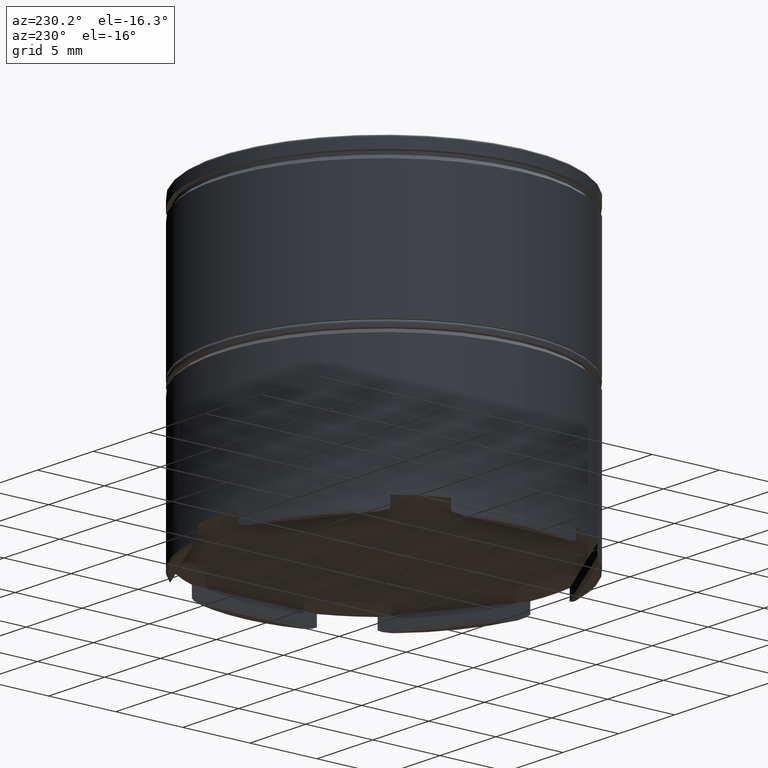
[diagram: clean part render]
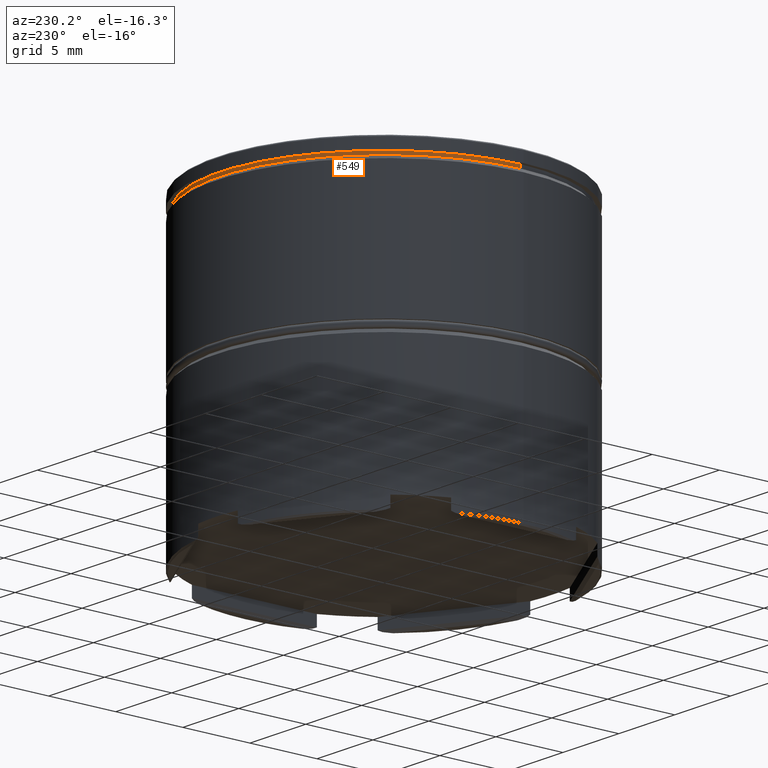
[diagram: same view with one face highlighted and labeled with its STEP entity id]
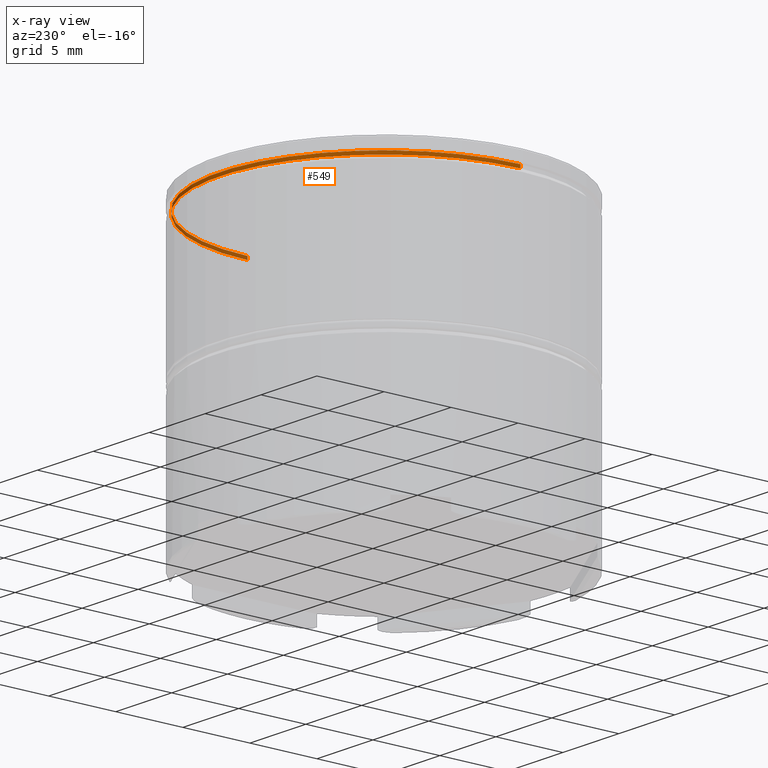
[diagram: x-ray of the same camera — body ghosted, the highlighted face saturated]
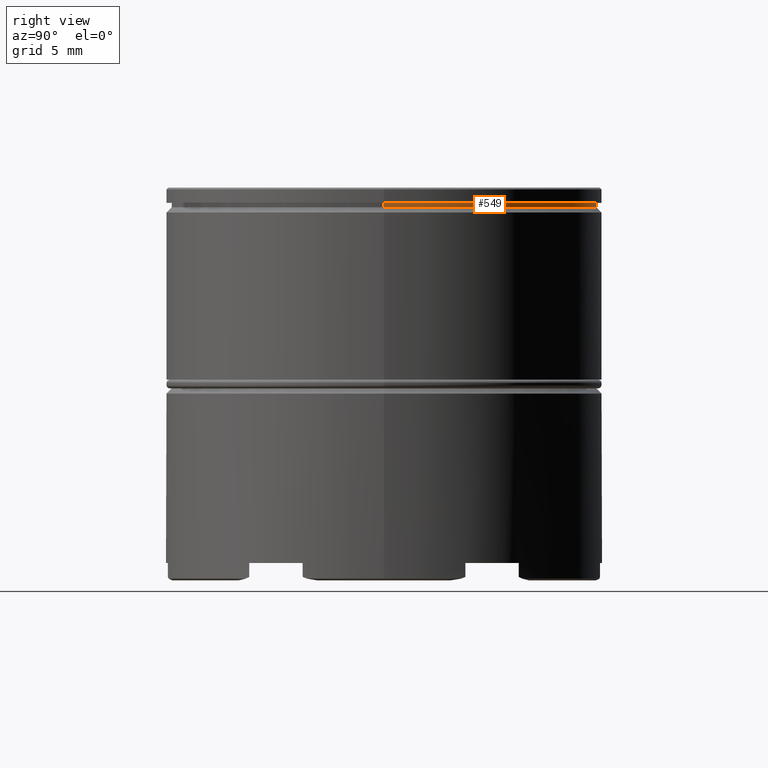
[diagram: same view with one face highlighted and labeled with its STEP entity id]
A machine part, auxiliary view. The second image highlights one B-rep face of the part: STEP entity #549.
The next image is the same camera in x-ray: the body ghosted, the highlighted face saturated — about 18% of this face is hidden behind the body in this view.
A second angle (right view) of the same face is appended — the face is thin or edge-on in the first view.
In plain terms, the highlighted cylindrical surface (partial cylindrical patch) has radius 12.2 mm, axis along (-0, -0, 1).
Its self-contained STEP definition (entity closure, byte-faithful):
#30 = AXIS2_PLACEMENT_3D ( 'NONE', #552, #661, #534 ) ;
#70 = VERTEX_POINT ( 'NONE', #1407 ) ;
#146 = CYLINDRICAL_SURFACE ( 'NONE', #267, 12.20000000000000107 ) ;
#161 = EDGE_CURVE ( 'NONE', #1548, #548, #1098, .T. ) ;
#166 = DIRECTION ( 'NONE',  ( 1.000000000000000000, 0.000000000000000000, 0.000000000000000000 ) ) ;
#189 = LINE ( 'NONE', #1304, #1076 ) ;
#222 = ORIENTED_EDGE ( 'NONE', *, *, #1458, .F. ) ;
#247 = ORIENTED_EDGE ( 'NONE', *, *, #161, .F. ) ;
#267 = AXIS2_PLACEMENT_3D ( 'NONE', #1317, #1038, #166 ) ;
#294 = DIRECTION ( 'NONE',  ( -0.000000000000000000, -0.000000000000000000, 1.000000000000000000 ) ) ;
#416 = EDGE_LOOP ( 'NONE', ( #640, #504, #247, #222 ) ) ;
#448 = DIRECTION ( 'NONE',  ( 1.000000000000000000, 0.000000000000000000, 0.000000000000000000 ) ) ;
#478 = CARTESIAN_POINT ( 'NONE',  ( 12.20000000000000107, 0.000000000000000000, -0.8749999999999998890 ) ) ;
#504 = ORIENTED_EDGE ( 'NONE', *, *, #965, .T. ) ;
#534 = DIRECTION ( 'NONE',  ( 1.000000000000000000, 0.000000000000000000, 0.000000000000000000 ) ) ;
#548 = VERTEX_POINT ( 'NONE', #1429 ) ;
#549 = ADVANCED_FACE ( 'NONE', ( #687 ), #146, .T. ) ;
#552 = CARTESIAN_POINT ( 'NONE',  ( 0.000000000000000000, 0.000000000000000000, -0.8749999999999998890 ) ) ;
#553 = LINE ( 'NONE', #1554, #1441 ) ;
#564 = DIRECTION ( 'NONE',  ( -0.000000000000000000, -0.000000000000000000, 1.000000000000000000 ) ) ;
#640 = ORIENTED_EDGE ( 'NONE', *, *, #948, .T. ) ;
#661 = DIRECTION ( 'NONE',  ( -0.000000000000000000, -0.000000000000000000, 1.000000000000000000 ) ) ;
#677 = CIRCLE ( 'NONE', #1467, 12.20000000000000107 ) ;
#687 = FACE_OUTER_BOUND ( 'NONE', #416, .T. ) ;
#826 = DIRECTION ( 'NONE',  ( -0.000000000000000000, -0.000000000000000000, 1.000000000000000000 ) ) ;
#948 = EDGE_CURVE ( 'NONE', #1183, #70, #677, .T. ) ;
#965 = EDGE_CURVE ( 'NONE', #70, #548, #189, .T. ) ;
#1038 = DIRECTION ( 'NONE',  ( -0.000000000000000000, -0.000000000000000000, 1.000000000000000000 ) ) ;
#1076 = VECTOR ( 'NONE', #564, 1000.000000000000000 ) ;
#1098 = CIRCLE ( 'NONE', #30, 12.20000000000000107 ) ;
#1183 = VERTEX_POINT ( 'NONE', #1371 ) ;
#1192 = CARTESIAN_POINT ( 'NONE',  ( 0.000000000000000000, 0.000000000000000000, -1.125000000000000222 ) ) ;
#1304 = CARTESIAN_POINT ( 'NONE',  ( -12.20000000000000107, 1.494069094959771056E-15, 0.000000000000000000 ) ) ;
#1317 = CARTESIAN_POINT ( 'NONE',  ( 0.000000000000000000, 0.000000000000000000, 0.000000000000000000 ) ) ;
#1371 = CARTESIAN_POINT ( 'NONE',  ( 12.20000000000000107, 0.000000000000000000, -1.125000000000000222 ) ) ;
#1407 = CARTESIAN_POINT ( 'NONE',  ( -12.20000000000000107, 1.494069094959771056E-15, -1.125000000000000222 ) ) ;
#1429 = CARTESIAN_POINT ( 'NONE',  ( -12.20000000000000107, 1.494069094959771056E-15, -0.8749999999999998890 ) ) ;
#1441 = VECTOR ( 'NONE', #826, 1000.000000000000000 ) ;
#1458 = EDGE_CURVE ( 'NONE', #1183, #1548, #553, .T. ) ;
#1467 = AXIS2_PLACEMENT_3D ( 'NONE', #1192, #294, #448 ) ;
#1548 = VERTEX_POINT ( 'NONE', #478 ) ;
#1554 = CARTESIAN_POINT ( 'NONE',  ( 12.20000000000000107, 0.000000000000000000, 0.000000000000000000 ) ) ;